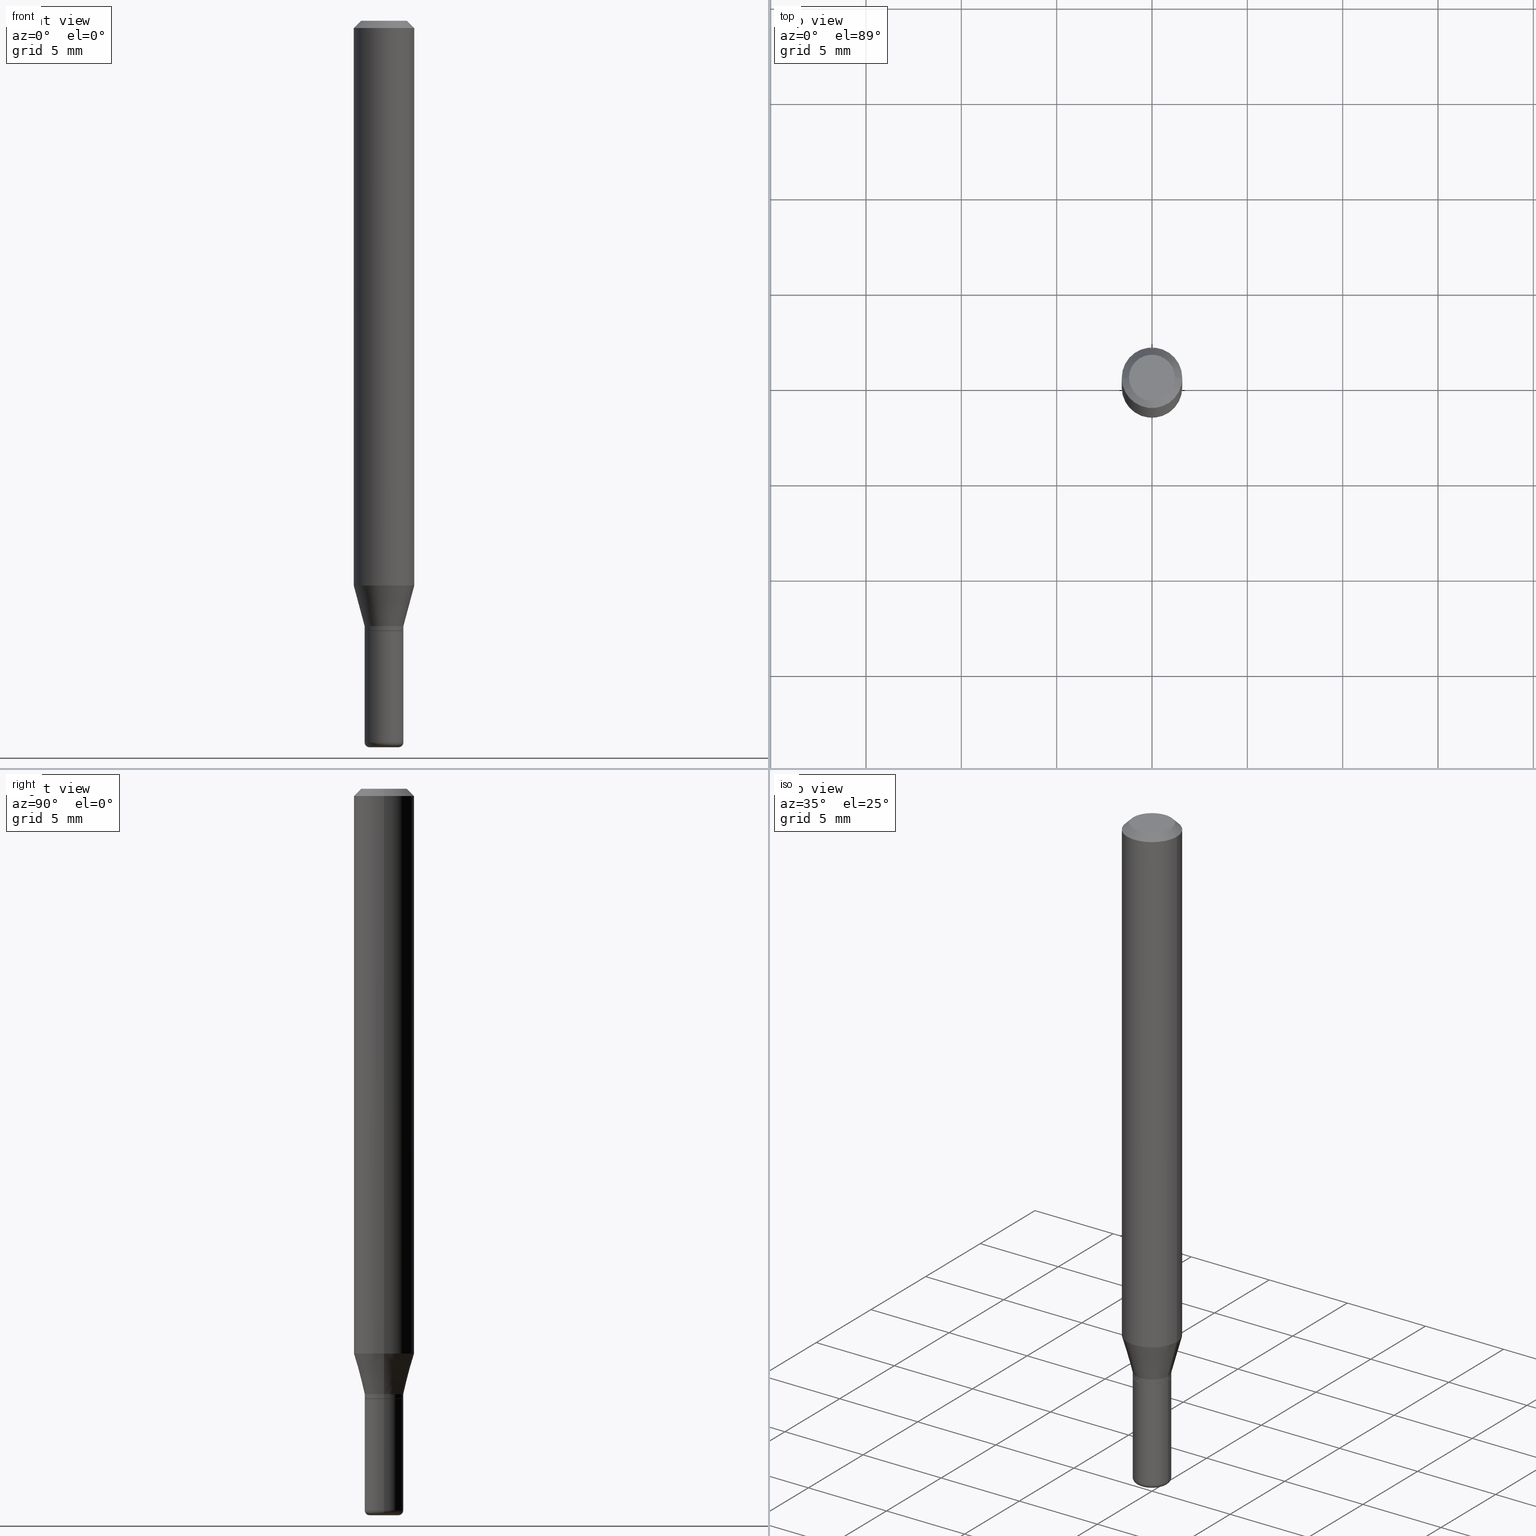
[diagram: canonical four-view strip — front | top / right | iso, engineering-drawing reading convention]
A machine part, canonical four-view strip (front | top / right | iso — engineering-drawing reading convention). The complete STEP part file that produces these views, byte-faithful:
ISO-10303-21;
HEADER;
FILE_DESCRIPTION (( 'STEP AP203' ),
    '1' );
FILE_NAME ('08703.STEP',
    '2024-02-29T20:28:42',
    ( '' ),
    ( '' ),
    'SwSTEP 2.0',
    'SolidWorks 2023',
    '' );
FILE_SCHEMA (( 'CONFIG_CONTROL_DESIGN' ));
ENDSEC;

DATA;
#1 = FACE_OUTER_BOUND ( 'NONE', #333, .T. ) ;
#2 = CIRCLE ( 'NONE', #488, 0.03999999999999995226 ) ;
#3 = EDGE_CURVE ( 'NONE', #301, #311, #379, .T. ) ;
#4 = VECTOR ( 'NONE', #401, 39.37007874015748143 ) ;
#5 = DIRECTION ( 'NONE',  ( 1.000000000000000000, -6.982962677686265922E-15, 4.876176775795935793E-29 ) ) ;
#6 = ORIENTED_EDGE ( 'NONE', *, *, #288, .T. ) ;
#7 = EDGE_CURVE ( 'NONE', #68, #344, #48, .T. ) ;
#8 = VECTOR ( 'NONE', #188, 39.37007874015748143 ) ;
#9 = DIRECTION ( 'NONE',  ( 2.445468806185136597E-29, -3.491481338843145583E-15, -1.000000000000000000 ) ) ;
#10 = CIRCLE ( 'NONE', #234, 0.03999999999999995920 ) ;
#11 = ADVANCED_BREP_SHAPE_REPRESENTATION ( '08703', ( #357, #173, #45 ), #308 ) ;
#12 = CARTESIAN_POINT ( 'NONE',  ( 3.643748521215853910E-29, -5.202307194876288105E-15, -1.490000000000000213 ) ) ;
#13 = EDGE_LOOP ( 'NONE', ( #101, #462, #169, #513 ) ) ;
#14 = DIRECTION ( 'NONE',  ( -2.445468806185136597E-29, 3.491481338843145583E-15, 1.000000000000000000 ) ) ;
#15 = FACE_OUTER_BOUND ( 'NONE', #506, .T. ) ;
#16 = ORIENTED_EDGE ( 'NONE', *, *, #380, .T. ) ;
#17 = FACE_OUTER_BOUND ( 'NONE', #18, .T. ) ;
#18 = EDGE_LOOP ( 'NONE', ( #466, #418, #216, #176 ) ) ;
#19 = VECTOR ( 'NONE', #407, 39.37007874015748143 ) ;
#20 = ORIENTED_EDGE ( 'NONE', *, *, #192, .T. ) ;
#21 = DIRECTION ( 'NONE',  ( -0.2588190451025205174, 5.211531920934544731E-15, 0.9659258262890684232 ) ) ;
#22 = ORIENTED_EDGE ( 'NONE', *, *, #7, .T. ) ;
#23 = SECURITY_CLASSIFICATION ( '', '', #166 ) ;
#24 = ORIENTED_EDGE ( 'NONE', *, *, #482, .F. ) ;
#25 = AXIS2_PLACEMENT_3D ( 'NONE', #194, #516, #155 ) ;
#26 = MECHANICAL_CONTEXT ( 'NONE', #276, 'mechanical' ) ;
#27 = ORIENTED_EDGE ( 'NONE', *, *, #406, .F. ) ;
#28 = ORIENTED_EDGE ( 'NONE', *, *, #439, .T. ) ;
#29 = DIRECTION ( 'NONE',  ( -1.000000000000000000, 7.105427357600962416E-15, 0.000000000000000000 ) ) ;
#30 = EDGE_CURVE ( 'NONE', #218, #227, #322, .T. ) ;
#31 = ORIENTED_EDGE ( 'NONE', *, *, #470, .T. ) ;
#32 = DIRECTION ( 'NONE',  ( -6.982962677686266711E-15, -1.000000000000000000, 3.491481338843145583E-15 ) ) ;
#33 = DIRECTION ( 'NONE',  ( -2.438088387897960049E-29, 3.491481338843145188E-15, 1.000000000000000000 ) ) ;
#34 = ORIENTED_EDGE ( 'NONE', *, *, #163, .F. ) ;
#35 = COORDINATED_UNIVERSAL_TIME_OFFSET ( 5, 0, .BEHIND. ) ;
#36 = CARTESIAN_POINT ( 'NONE',  ( 0.02999999999999999889, -5.411796075206875633E-15, -1.490000000000000213 ) ) ;
#37 = ORIENTED_EDGE ( 'NONE', *, *, #327, .F. ) ;
#38 = CIRCLE ( 'NONE', #267, 0.06250000000000000000 ) ;
#39 = CARTESIAN_POINT ( 'NONE',  ( 0.06250000000000000000, -4.507603161528896392E-15, -1.166028856829700144 ) ) ;
#40 = CARTESIAN_POINT ( 'NONE',  ( -6.680649051745406845E-45, 9.538196290434862081E-31, 2.731847993664263218E-16 ) ) ;
#41 = PERSON_AND_ORGANIZATION ( #485, #105 ) ;
#42 = PLANE ( 'NONE',  #370 ) ;
#43 = DIRECTION ( 'NONE',  ( 1.000000000000000000, -6.982962677686272233E-15, 0.000000000000000000 ) ) ;
#44 = CIRCLE ( 'NONE', #508, 0.04000000000000000083 ) ;
#45 = AXIS2_PLACEMENT_3D ( 'NONE', #298, #341, #183 ) ;
#46 = ORIENTED_EDGE ( 'NONE', *, *, #340, .T. ) ;
#47 = FACE_OUTER_BOUND ( 'NONE', #452, .T. ) ;
#48 = CIRCLE ( 'NONE', #243, 0.06250000000000000000 ) ;
#49 = CARTESIAN_POINT ( 'NONE',  ( 3.056836007731421306E-29, -4.364351673553932471E-15, -1.250000000000000000 ) ) ;
#50 = DATE_AND_TIME ( #119, #296 ) ;
#51 =( CONVERSION_BASED_UNIT ( 'INCH', #53 ) LENGTH_UNIT ( ) NAMED_UNIT ( #335 ) );
#52 = EDGE_CURVE ( 'NONE', #432, #361, #250, .T. ) ;
#53 = LENGTH_MEASURE_WITH_UNIT ( LENGTH_MEASURE( 0.02539999999999999897 ), #447 );
#54 = PERSON_AND_ORGANIZATION ( #485, #105 ) ;
#55 = CARTESIAN_POINT ( 'NONE',  ( 3.668203209277632395E-31, -5.237222008264614861E-17, -0.01499999999999970281 ) ) ;
#56 = DATE_AND_TIME ( #435, #367 ) ;
#57 = PERSON_AND_ORGANIZATION_ROLE ( 'creator' ) ;
#58 = PRODUCT ( '08703', '08703', '', ( #26 ) ) ;
#59 = DIRECTION ( 'NONE',  ( 2.438088387897960049E-29, -3.491481338843145188E-15, -1.000000000000000000 ) ) ;
#60 = DIRECTION ( 'NONE',  ( 1.000000000000000000, -6.982962677686276177E-15, 0.000000000000000000 ) ) ;
#61 = EDGE_CURVE ( 'NONE', #361, #432, #10, .T. ) ;
#62 = VECTOR ( 'NONE', #468, 39.37007874015748143 ) ;
#63 = CARTESIAN_POINT ( 'NONE',  ( 0.03949999999999997263, -4.675093512710971939E-15, -1.260000000000000231 ) ) ;
#64 = ADVANCED_FACE ( 'NONE', ( #385 ), #428, .F. ) ;
#65 = APPROVAL_PERSON_ORGANIZATION ( #318, #70, #352 ) ;
#66 = DIRECTION ( 'NONE',  ( 1.000000000000000000, -6.982962677686266711E-15, 0.000000000000000000 ) ) ;
#67 = ORIENTED_EDGE ( 'NONE', *, *, #441, .F. ) ;
#68 = VERTEX_POINT ( 'NONE', #512 ) ;
#69 = ADVANCED_FACE ( 'NONE', ( #113 ), #474, .T. ) ;
#70 = APPROVAL ( #205, 'UNSPECIFIED' ) ;
#71 = AXIS2_PLACEMENT_3D ( 'NONE', #498, #505, #461 ) ;
#72 = CARTESIAN_POINT ( 'NONE',  ( -0.04000000000000000083, -4.516569746605286181E-15, -1.260000000000000231 ) ) ;
#73 = ORIENTED_EDGE ( 'NONE', *, *, #92, .F. ) ;
#74 = ADVANCED_FACE ( 'NONE', ( #85 ), #313, .T. ) ;
#75 = AXIS2_PLACEMENT_3D ( 'NONE', #431, #150, #158 ) ;
#76 = EDGE_LOOP ( 'NONE', ( #137, #217 ) ) ;
#77 = DIRECTION ( 'NONE',  ( 1.000000000000000000, -6.982962677686276177E-15, 0.000000000000000000 ) ) ;
#78 = DIRECTION ( 'NONE',  ( -2.445468806185136597E-29, 3.491481338843145583E-15, 1.000000000000000000 ) ) ;
#79 = ORIENTED_EDGE ( 'NONE', *, *, #61, .F. ) ;
#80 = CC_DESIGN_APPROVAL ( #141, ( #355 ) ) ;
#81 = CARTESIAN_POINT ( 'NONE',  ( -0.03999999999999997308, 2.842170943040398830E-16, -1.967574036101961108E-30 ) ) ;
#82 = ORIENTED_EDGE ( 'NONE', *, *, #288, .F. ) ;
#83 = AXIS2_PLACEMENT_3D ( 'NONE', #453, #381, #29 ) ;
#84 = DIRECTION ( 'NONE',  ( -2.445468806185136877E-29, 3.491481338843145188E-15, 1.000000000000000000 ) ) ;
#85 = FACE_OUTER_BOUND ( 'NONE', #13, .T. ) ;
#86 = DIRECTION ( 'NONE',  ( 1.000000000000000000, -6.982962677686268288E-15, 4.876176775795935793E-29 ) ) ;
#87 = DIRECTION ( 'NONE',  ( -2.445468806185136597E-29, 3.491481338843145583E-15, 1.000000000000000000 ) ) ;
#88 = DIRECTION ( 'NONE',  ( 1.000000000000000000, -6.982962677686268288E-15, 0.000000000000000000 ) ) ;
#89 = CLOSED_SHELL ( 'NONE', ( #346, #463, #144, #69, #168, #202, #74, #392, #104, #228, #282, #373 ) ) ;
#90 = DIRECTION ( 'NONE',  ( -0.7071067811864267805, 7.493145998869918709E-15, 0.7071067811866682540 ) ) ;
#91 = CARTESIAN_POINT ( 'NONE',  ( 3.081290695793272291E-29, -4.399266486942364120E-15, -1.260000000000000231 ) ) ;
#92 = EDGE_CURVE ( 'NONE', #413, #317, #332, .T. ) ;
#93 = LOCAL_TIME ( 15, 28, 42.00000000000000000, #337 ) ;
#94 = LINE ( 'NONE', #409, #19 ) ;
#95 = CLOSED_SHELL ( 'NONE', ( #451, #153, #162, #303, #400, #64 ) ) ;
#96 = ORIENTED_EDGE ( 'NONE', *, *, #430, .F. ) ;
#97 = DIRECTION ( 'NONE',  ( -2.445468806185136597E-29, 3.491481338843145583E-15, 1.000000000000000000 ) ) ;
#98 = CARTESIAN_POINT ( 'NONE',  ( -0.06250000000000000000, -3.627078784323441317E-15, -1.166028856829700144 ) ) ;
#99 = VERTEX_POINT ( 'NONE', #443 ) ;
#100 = FACE_OUTER_BOUND ( 'NONE', #330, .T. ) ;
#101 = ORIENTED_EDGE ( 'NONE', *, *, #415, .F. ) ;
#102 = EDGE_CURVE ( 'NONE', #382, #344, #157, .T. ) ;
#103 = CC_DESIGN_PERSON_AND_ORGANIZATION_ASSIGNMENT ( #41, #57, ( #146 ) ) ;
#104 = ADVANCED_FACE ( 'NONE', ( #423 ), #42, .F. ) ;
#105 = ORGANIZATION ( 'UNSPECIFIED', 'UNSPECIFIED', '' ) ;
#106 = EDGE_LOOP ( 'NONE', ( #31, #492 ) ) ;
#107 = PERSON_AND_ORGANIZATION ( #485, #105 ) ;
#108 = CARTESIAN_POINT ( 'NONE',  ( -0.03999999999999996614, 2.842170943040398337E-16, -1.967574036101960757E-30 ) ) ;
#109 = AXIS2_PLACEMENT_3D ( 'NONE', #159, #196, #88 ) ;
#110 = ORIENTED_EDGE ( 'NONE', *, *, #52, .T. ) ;
#111 = DIRECTION ( 'NONE',  ( -2.445468806185136597E-29, 3.491481338843145583E-15, 1.000000000000000000 ) ) ;
#112 = LINE ( 'NONE', #81, #501 ) ;
#113 = FACE_OUTER_BOUND ( 'NONE', #230, .T. ) ;
#114 = CARTESIAN_POINT ( 'NONE',  ( 0.000000000000000000, 0.000000000000000000, 0.000000000000000000 ) ) ;
#115 = CONICAL_SURFACE ( 'NONE', #464, 0.06250000000000000000, 0.7853981633974488341 ) ;
#116 = LINE ( 'NONE', #515, #62 ) ;
#117 = DIRECTION ( 'NONE',  ( -2.445468806185136597E-29, 3.491481338843145583E-15, 1.000000000000000000 ) ) ;
#118 = CARTESIAN_POINT ( 'NONE',  ( 2.851487196488746564E-29, -4.071167994173503933E-15, -1.166028856829700144 ) ) ;
#119 = CALENDAR_DATE ( 2024, 29, 2 ) ;
#120 = CARTESIAN_POINT ( 'NONE',  ( 3.081290695793272291E-29, -4.399266486942364120E-15, -1.260000000000000231 ) ) ;
#121 = EDGE_CURVE ( 'NONE', #432, #145, #209, .T. ) ;
#122 =( NAMED_UNIT ( * ) SI_UNIT ( $, .STERADIAN. ) SOLID_ANGLE_UNIT ( ) );
#123 = COORDINATED_UNIVERSAL_TIME_OFFSET ( 5, 0, .BEHIND. ) ;
#124 = LINE ( 'NONE', #493, #4 ) ;
#125 = CC_DESIGN_PERSON_AND_ORGANIZATION_ASSIGNMENT ( #284, #402, ( #146 ) ) ;
#126 = DIRECTION ( 'NONE',  ( 1.000000000000000000, -6.982962677686266711E-15, 4.852736867747365086E-29 ) ) ;
#127 = CARTESIAN_POINT ( 'NONE',  ( 3.081290695793272291E-29, -4.399266486942364120E-15, -1.260000000000000231 ) ) ;
#128 = ORIENTED_EDGE ( 'NONE', *, *, #304, .F. ) ;
#129 = DIRECTION ( 'NONE',  ( 1.000000000000000000, -6.982962677686269077E-15, 4.883557194083114022E-29 ) ) ;
#130 = ORIENTED_EDGE ( 'NONE', *, *, #181, .F. ) ;
#131 = DIRECTION ( 'NONE',  ( -2.445468806185136597E-29, 3.491481338843145583E-15, 1.000000000000000000 ) ) ;
#132 = UNCERTAINTY_MEASURE_WITH_UNIT (LENGTH_MEASURE( 1.000000000000000082E-05 ), #51, 'distance_accuracy_value', 'NONE');
#133 = LINE ( 'NONE', #108, #203 ) ;
#134 = ORIENTED_EDGE ( 'NONE', *, *, #171, .F. ) ;
#135 = EDGE_LOOP ( 'NONE', ( #82, #96 ) ) ;
#136 = CIRCLE ( 'NONE', #208, 0.04000000000000000083 ) ;
#137 = ORIENTED_EDGE ( 'NONE', *, *, #198, .F. ) ;
#138 = APPLICATION_PROTOCOL_DEFINITION ( 'international standard', 'config_control_design', 1994, #300 ) ;
#139 = AXIS2_PLACEMENT_3D ( 'NONE', #55, #211, #294 ) ;
#140 = DIRECTION ( 'NONE',  ( -2.445468806185136597E-29, 3.491481338843145583E-15, 1.000000000000000000 ) ) ;
#141 = APPROVAL ( #467, 'UNSPECIFIED' ) ;
#142 = ORIENTED_EDGE ( 'NONE', *, *, #102, .F. ) ;
#143 = AXIS2_PLACEMENT_3D ( 'NONE', #114, #307, #226 ) ;
#144 = ADVANCED_FACE ( 'NONE', ( #100 ), #115, .T. ) ;
#145 = VERTEX_POINT ( 'NONE', #98 ) ;
#146 = PRODUCT_DEFINITION_FORMATION_WITH_SPECIFIED_SOURCE ( 'ANY', '', #58, .NOT_KNOWN. ) ;
#147 = CARTESIAN_POINT ( 'NONE',  ( 3.668203209277704895E-29, -5.237222008264718177E-15, -1.500000000000000222 ) ) ;
#148 = ORIENTED_EDGE ( 'NONE', *, *, #514, .F. ) ;
#149 = PERSON_AND_ORGANIZATION ( #485, #105 ) ;
#150 = DIRECTION ( 'NONE',  ( -2.445468806185136597E-29, 3.491481338843145583E-15, 1.000000000000000000 ) ) ;
#151 = ORIENTED_EDGE ( 'NONE', *, *, #324, .F. ) ;
#152 = CIRCLE ( 'NONE', #291, 0.009999999999999948166 ) ;
#153 = ADVANCED_FACE ( 'NONE', ( #247 ), #289, .T. ) ;
#154 = LINE ( 'NONE', #517, #433 ) ;
#155 = DIRECTION ( 'NONE',  ( 1.000000000000000000, -6.982962677686266711E-15, 4.876176775795935793E-29 ) ) ;
#156 = APPROVAL_PERSON_ORGANIZATION ( #359, #476, #396 ) ;
#157 = LINE ( 'NONE', #478, #398 ) ;
#158 = DIRECTION ( 'NONE',  ( 1.000000000000000000, -6.982962677686276177E-15, 0.000000000000000000 ) ) ;
#159 = CARTESIAN_POINT ( 'NONE',  ( 3.643748521215853910E-29, -5.202307194876288105E-15, -1.490000000000000213 ) ) ;
#160 = DIRECTION ( 'NONE',  ( 1.000000000000000000, -6.982962677686259611E-15, 0.000000000000000000 ) ) ;
#161 = CONICAL_SURFACE ( 'NONE', #448, 0.06250000000000000000, 0.7853981633974488341 ) ;
#162 = ADVANCED_FACE ( 'NONE', ( #15 ), #494, .F. ) ;
#163 = EDGE_CURVE ( 'NONE', #227, #218, #2, .T. ) ;
#164 = FACE_OUTER_BOUND ( 'NONE', #135, .T. ) ;
#165 = LINE ( 'NONE', #442, #245 ) ;
#166 = SECURITY_CLASSIFICATION_LEVEL ( 'unclassified' ) ;
#167 = VECTOR ( 'NONE', #21, 39.37007874015748143 ) ;
#168 = ADVANCED_FACE ( 'NONE', ( #329 ), #292, .T. ) ;
#169 = ORIENTED_EDGE ( 'NONE', *, *, #102, .T. ) ;
#170 =( NAMED_UNIT ( * ) PLANE_ANGLE_UNIT ( ) SI_UNIT ( $, .RADIAN. ) );
#171 = EDGE_CURVE ( 'NONE', #311, #301, #416, .T. ) ;
#172 = DIRECTION ( 'NONE',  ( 2.445468806185136597E-29, -3.491481338843145583E-15, -1.000000000000000000 ) ) ;
#173 = MANIFOLD_SOLID_BREP ( 'Body-Move/Copy2[2]', #89 ) ;
#174 = LINE ( 'NONE', #491, #223 ) ;
#175 = CC_DESIGN_SECURITY_CLASSIFICATION ( #23, ( #146 ) ) ;
#176 = ORIENTED_EDGE ( 'NONE', *, *, #30, .F. ) ;
#177 = DIRECTION ( 'NONE',  ( -1.000000000000000000, 6.982962677686266711E-15, 0.000000000000000000 ) ) ;
#178 = AXIS2_PLACEMENT_3D ( 'NONE', #127, #97, #495 ) ;
#179 = ORIENTED_EDGE ( 'NONE', *, *, #514, .T. ) ;
#180 = DIRECTION ( 'NONE',  ( -1.000000000000000000, 6.982962677686266711E-15, 0.000000000000000000 ) ) ;
#181 = EDGE_CURVE ( 'NONE', #301, #432, #133, .T. ) ;
#182 = EDGE_LOOP ( 'NONE', ( #6, #222, #134, #378 ) ) ;
#183 = DIRECTION ( 'NONE',  ( 1.000000000000000000, 0.000000000000000000, 0.000000000000000000 ) ) ;
#184 = AXIS2_PLACEMENT_3D ( 'NONE', #275, #348, #201 ) ;
#185 = TOROIDAL_SURFACE ( 'NONE', #399, 0.02999999999999999889, 0.009999999999999946432 ) ;
#186 = VERTEX_POINT ( 'NONE', #72 ) ;
#187 = DIRECTION ( 'NONE',  ( -2.445468806185136597E-29, 3.491481338843145583E-15, 1.000000000000000000 ) ) ;
#188 = DIRECTION ( 'NONE',  ( -0.7071067811865479058, 2.468850131082261005E-15, -0.7071067811865471286 ) ) ;
#189 = DIRECTION ( 'NONE',  ( 1.000000000000000000, -6.982962677686265922E-15, 4.876176775795935793E-29 ) ) ;
#190 = AXIS2_PLACEMENT_3D ( 'NONE', #233, #242, #397 ) ;
#191 = CALENDAR_DATE ( 2024, 29, 2 ) ;
#192 = EDGE_CURVE ( 'NONE', #221, #218, #299, .T. ) ;
#193 = CARTESIAN_POINT ( 'NONE',  ( -0.03000000000000000583, -4.971074644054468644E-15, -1.500000000000000222 ) ) ;
#194 = CARTESIAN_POINT ( 'NONE',  ( 0.000000000000000000, 0.000000000000000000, 0.000000000000000000 ) ) ;
#195 = CARTESIAN_POINT ( 'NONE',  ( 0.03000000000000000583, -5.446710888595306494E-15, -1.500000000000000222 ) ) ;
#196 = DIRECTION ( 'NONE',  ( -2.445468806185136597E-29, 3.491481338843145583E-15, 1.000000000000000000 ) ) ;
#197 = CARTESIAN_POINT ( 'NONE',  ( 3.316907271900976589E-16, 0.04750000000000000749, -2.925296391183627249E-17 ) ) ;
#198 = EDGE_CURVE ( 'NONE', #388, #221, #360, .T. ) ;
#199 = APPROVAL_PERSON_ORGANIZATION ( #149, #141, #231 ) ;
#200 = CYLINDRICAL_SURFACE ( 'NONE', #249, 0.03999999999999996614 ) ;
#201 = DIRECTION ( 'NONE',  ( 1.000000000000000000, -6.982962677686264344E-15, 0.000000000000000000 ) ) ;
#202 = ADVANCED_FACE ( 'NONE', ( #258 ), #427, .T. ) ;
#203 = VECTOR ( 'NONE', #417, 39.37007874015748143 ) ;
#204 = CARTESIAN_POINT ( 'NONE',  ( 0.06250000000000000000, -4.888073874380378612E-16, -0.01499999999999970281 ) ) ;
#205 = APPROVAL_STATUS ( 'not_yet_approved' ) ;
#206 = DIRECTION ( 'NONE',  ( -2.445468806185136597E-29, 3.491481338843145583E-15, 1.000000000000000000 ) ) ;
#207 = LINE ( 'NONE', #403, #354 ) ;
#208 = AXIS2_PLACEMENT_3D ( 'NONE', #319, #345, #483 ) ;
#209 = LINE ( 'NONE', #499, #167 ) ;
#210 = ORIENTED_EDGE ( 'NONE', *, *, #3, .F. ) ;
#211 = DIRECTION ( 'NONE',  ( -2.445468806185136597E-29, 3.491481338843145583E-15, 1.000000000000000000 ) ) ;
#212 = DIRECTION ( 'NONE',  ( -2.445468806185136597E-29, 3.491481338843145583E-15, 1.000000000000000000 ) ) ;
#213 = EDGE_LOOP ( 'NONE', ( #510, #20, #34, #309 ) ) ;
#214 = FACE_OUTER_BOUND ( 'NONE', #213, .T. ) ;
#215 = CC_DESIGN_PERSON_AND_ORGANIZATION_ASSIGNMENT ( #338, #455, ( #355 ) ) ;
#216 = ORIENTED_EDGE ( 'NONE', *, *, #321, .T. ) ;
#217 = ORIENTED_EDGE ( 'NONE', *, *, #471, .F. ) ;
#218 = VERTEX_POINT ( 'NONE', #420 ) ;
#219 = CC_DESIGN_APPROVAL ( #70, ( #146 ) ) ;
#220 = AXIS2_PLACEMENT_3D ( 'NONE', #295, #259, #436 ) ;
#221 = VERTEX_POINT ( 'NONE', #193 ) ;
#222 = ORIENTED_EDGE ( 'NONE', *, *, #441, .T. ) ;
#223 = VECTOR ( 'NONE', #325, 39.37007874015748143 ) ;
#224 = CIRCLE ( 'NONE', #489, 0.03000000000000000583 ) ;
#225 = ORIENTED_EDGE ( 'NONE', *, *, #340, .F. ) ;
#226 = DIRECTION ( 'NONE',  ( 1.000000000000000000, -6.982962677686266711E-15, 4.876176775795935793E-29 ) ) ;
#227 = VERTEX_POINT ( 'NONE', #473 ) ;
#228 = ADVANCED_FACE ( 'NONE', ( #164 ), #239, .F. ) ;
#229 = APPROVAL_DATE_TIME ( #279, #70 ) ;
#230 = EDGE_LOOP ( 'NONE', ( #16, #372, #148, #142 ) ) ;
#231 = APPROVAL_ROLE ( '' ) ;
#232 = DIRECTION ( 'NONE',  ( 1.000000000000000000, -6.982962677686268288E-15, 4.876176775795935793E-29 ) ) ;
#233 = CARTESIAN_POINT ( 'NONE',  ( 3.056836007731421306E-29, -4.364351673553932471E-15, -1.250000000000000000 ) ) ;
#234 = AXIS2_PLACEMENT_3D ( 'NONE', #49, #78, #421 ) ;
#235 = DIRECTION ( 'NONE',  ( -2.445468806185136597E-29, 3.491481338843145583E-15, 1.000000000000000000 ) ) ;
#236 = CARTESIAN_POINT ( 'NONE',  ( 0.000000000000000000, 0.000000000000000000, 0.000000000000000000 ) ) ;
#237 = CC_DESIGN_PERSON_AND_ORGANIZATION_ASSIGNMENT ( #107, #457, ( #58 ) ) ;
#238 = CALENDAR_DATE ( 2024, 29, 2 ) ;
#239 = PLANE ( 'NONE',  #404 ) ;
#240 = CARTESIAN_POINT ( 'NONE',  ( 0.03999999999999995920, -4.643670180661383298E-15, -1.250000000000000000 ) ) ;
#241 = APPROVAL_STATUS ( 'not_yet_approved' ) ;
#242 = DIRECTION ( 'NONE',  ( -2.445468806185136597E-29, 3.491481338843145583E-15, 1.000000000000000000 ) ) ;
#243 = AXIS2_PLACEMENT_3D ( 'NONE', #484, #278, #270 ) ;
#244 = DIRECTION ( 'NONE',  ( 1.000000000000000000, -6.982962677686266711E-15, 0.000000000000000000 ) ) ;
#245 = VECTOR ( 'NONE', #90, 39.37007874015748143 ) ;
#246 = DIRECTION ( 'NONE',  ( -2.445468806185136597E-29, 3.491481338843145583E-15, 1.000000000000000000 ) ) ;
#247 = FACE_OUTER_BOUND ( 'NONE', #375, .T. ) ;
#248 = CARTESIAN_POINT ( 'NONE',  ( 3.668203209277704895E-29, -5.237222008264718177E-15, -1.500000000000000222 ) ) ;
#249 = AXIS2_PLACEMENT_3D ( 'NONE', #475, #480, #86 ) ;
#250 = CIRCLE ( 'NONE', #190, 0.03999999999999995920 ) ;
#251 = DIRECTION ( 'NONE',  ( 1.000000000000000000, -6.982962677686269077E-15, 4.883557194083114022E-29 ) ) ;
#252 = VERTEX_POINT ( 'NONE', #273 ) ;
#253 = EDGE_CURVE ( 'NONE', #186, #99, #136, .T. ) ;
#254 = CARTESIAN_POINT ( 'NONE',  ( 0.04750000000000000749, -4.035134999187568762E-16, 2.731847993664288856E-16 ) ) ;
#255 = CARTESIAN_POINT ( 'NONE',  ( 3.668203209277632395E-31, -5.237222008264614861E-17, -0.01499999999999970281 ) ) ;
#256 = ORIENTED_EDGE ( 'NONE', *, *, #121, .T. ) ;
#257 = CIRCLE ( 'NONE', #139, 0.06250000000000000000 ) ;
#258 = FACE_OUTER_BOUND ( 'NONE', #481, .T. ) ;
#259 = DIRECTION ( 'NONE',  ( 2.438088387897960049E-29, -3.491481338843145188E-15, -1.000000000000000000 ) ) ;
#260 = EDGE_CURVE ( 'NONE', #218, #186, #112, .T. ) ;
#261 = LOCAL_TIME ( 15, 28, 42.00000000000000000, #274 ) ;
#262 = EDGE_LOOP ( 'NONE', ( #419, #371, #79, #24 ) ) ;
#263 = DIRECTION ( 'NONE',  ( 1.000000000000000000, -6.982962677686268288E-15, 0.000000000000000000 ) ) ;
#264 = AXIS2_PLACEMENT_3D ( 'NONE', #465, #111, #269 ) ;
#265 = ORIENTED_EDGE ( 'NONE', *, *, #406, .T. ) ;
#266 = CC_DESIGN_DATE_AND_TIME_ASSIGNMENT ( #50, #314, ( #355 ) ) ;
#267 = AXIS2_PLACEMENT_3D ( 'NONE', #386, #347, #390 ) ;
#268 = APPLICATION_PROTOCOL_DEFINITION ( 'international standard', 'config_control_design', 1994, #276 ) ;
#269 = DIRECTION ( 'NONE',  ( 1.000000000000000000, -6.982962677686279332E-15, 0.000000000000000000 ) ) ;
#270 = DIRECTION ( 'NONE',  ( 1.000000000000000000, -6.982962677686266711E-15, 0.000000000000000000 ) ) ;
#271 = CARTESIAN_POINT ( 'NONE',  ( -0.04750000000000000749, 3.578768372314221353E-16, 2.731847993664239060E-16 ) ) ;
#272 = EDGE_LOOP ( 'NONE', ( #67, #469, #28, #210 ) ) ;
#273 = CARTESIAN_POINT ( 'NONE',  ( -0.03949999999999997263, -4.115952879143013491E-15, -1.260000000000000231 ) ) ;
#274 = COORDINATED_UNIVERSAL_TIME_OFFSET ( 5, 0, .BEHIND. ) ;
#275 = CARTESIAN_POINT ( 'NONE',  ( 3.080067961390179490E-29, -4.397520746272941828E-15, -1.259500000000000064 ) ) ;
#276 = APPLICATION_CONTEXT ( 'configuration controlled 3d designs of mechanical parts and assemblies' ) ;
#277 = CARTESIAN_POINT ( 'NONE',  ( -0.06250000000000000000, 3.840629472727455270E-16, -0.01499999999999970281 ) ) ;
#278 = DIRECTION ( 'NONE',  ( -2.445468806185136597E-29, 3.491481338843145583E-15, 1.000000000000000000 ) ) ;
#279 = DATE_AND_TIME ( #238, #93 ) ;
#280 = LINE ( 'NONE', #277, #8 ) ;
#281 = DIRECTION ( 'NONE',  ( -2.445468806185136877E-29, 3.491481338843145188E-15, 1.000000000000000000 ) ) ;
#282 = ADVANCED_FACE ( 'NONE', ( #393 ), #316, .T. ) ;
#283 = APPROVAL_DATE_TIME ( #56, #476 ) ;
#284 = PERSON_AND_ORGANIZATION ( #485, #105 ) ;
#285 = AXIS2_PLACEMENT_3D ( 'NONE', #408, #212, #440 ) ;
#286 = DIRECTION ( 'NONE',  ( -2.445468806185136877E-29, 3.491481338843145188E-15, 1.000000000000000000 ) ) ;
#287 = CONICAL_SURFACE ( 'NONE', #496, 0.03949999999999997263, 0.7853981633972775267 ) ;
#288 = EDGE_CURVE ( 'NONE', #410, #252, #503, .T. ) ;
#289 = CYLINDRICAL_SURFACE ( 'NONE', #285, 0.03999999999999997308 ) ;
#290 = CARTESIAN_POINT ( 'NONE',  ( -0.03999999999999995920, -3.853606681786666336E-15, -1.250000000000000000 ) ) ;
#291 = AXIS2_PLACEMENT_3D ( 'NONE', #36, #32, #43 ) ;
#292 = CONICAL_SURFACE ( 'NONE', #71, 0.03999999999999995920, 0.2617993877991491858 ) ;
#293 = EDGE_LOOP ( 'NONE', ( #27, #502, #323, #22 ) ) ;
#294 = DIRECTION ( 'NONE',  ( 1.000000000000000000, -6.982962677686266711E-15, 0.000000000000000000 ) ) ;
#295 = CARTESIAN_POINT ( 'NONE',  ( 2.793185071074814439E-16, 0.03999999999999560157, -1.260000000000000453 ) ) ;
#296 = LOCAL_TIME ( 15, 28, 42.00000000000000000, #507 ) ;
#297 = APPROVAL_DATE_TIME ( #500, #141 ) ;
#298 = CARTESIAN_POINT ( 'NONE',  ( 0.000000000000000000, 0.000000000000000000, 0.000000000000000000 ) ) ;
#299 = CIRCLE ( 'NONE', #83, 0.009999999999999948166 ) ;
#300 = APPLICATION_CONTEXT ( 'configuration controlled 3d designs of mechanical parts and assemblies' ) ;
#301 = VERTEX_POINT ( 'NONE', #312 ) ;
#302 = LOCAL_TIME ( 15, 28, 42.00000000000000000, #35 ) ;
#303 = ADVANCED_FACE ( 'NONE', ( #1 ), #429, .T. ) ;
#304 = EDGE_CURVE ( 'NONE', #361, #382, #116, .T. ) ;
#305 = DIRECTION ( 'NONE',  ( 1.000000000000000000, -6.982962677686264344E-15, 0.000000000000000000 ) ) ;
#306 = TOROIDAL_SURFACE ( 'NONE', #389, 0.02999999999999999889, 0.009999999999999946432 ) ;
#307 = DIRECTION ( 'NONE',  ( -2.445468806185136597E-29, 3.491481338843145583E-15, 1.000000000000000000 ) ) ;
#308 =( GEOMETRIC_REPRESENTATION_CONTEXT ( 3 ) GLOBAL_UNCERTAINTY_ASSIGNED_CONTEXT ( ( #132 ) ) GLOBAL_UNIT_ASSIGNED_CONTEXT ( ( #51, #170, #122 ) ) REPRESENTATION_CONTEXT ( 'NONE', 'WORKASPACE' ) );
#309 = ORIENTED_EDGE ( 'NONE', *, *, #321, .F. ) ;
#310 = DIRECTION ( 'NONE',  ( -2.445468806185136597E-29, 3.491481338843145583E-15, 1.000000000000000000 ) ) ;
#311 = VERTEX_POINT ( 'NONE', #384 ) ;
#312 = CARTESIAN_POINT ( 'NONE',  ( -0.03999999999999997308, -4.113303651968902290E-15, -1.259500000000000064 ) ) ;
#313 = CYLINDRICAL_SURFACE ( 'NONE', #445, 0.06250000000000000000 ) ;
#314 = DATE_TIME_ROLE ( 'creation_date' ) ;
#315 = DIRECTION ( 'NONE',  ( -2.445468806185136597E-29, 3.491481338843145583E-15, 1.000000000000000000 ) ) ;
#316 = CONICAL_SURFACE ( 'NONE', #479, 0.03949999999999997263, 0.7853981633972775267 ) ;
#317 = VERTEX_POINT ( 'NONE', #271 ) ;
#318 = PERSON_AND_ORGANIZATION ( #485, #105 ) ;
#319 = CARTESIAN_POINT ( 'NONE',  ( 3.081290695793272291E-29, -4.399266486942364120E-15, -1.260000000000000231 ) ) ;
#320 = SHAPE_DEFINITION_REPRESENTATION ( #487, #11 ) ;
#321 = EDGE_CURVE ( 'NONE', #388, #227, #152, .T. ) ;
#322 = CIRCLE ( 'NONE', #109, 0.03999999999999995226 ) ;
#323 = ORIENTED_EDGE ( 'NONE', *, *, #324, .T. ) ;
#324 = EDGE_CURVE ( 'NONE', #317, #68, #280, .T. ) ;
#325 = DIRECTION ( 'NONE',  ( 0.7071067811865479058, -7.319954787623257623E-15, -0.7071067811865471286 ) ) ;
#326 = CIRCLE ( 'NONE', #350, 0.06250000000000000000 ) ;
#327 = EDGE_CURVE ( 'NONE', #227, #99, #154, .T. ) ;
#328 = ORIENTED_EDGE ( 'NONE', *, *, #30, .T. ) ;
#329 = FACE_OUTER_BOUND ( 'NONE', #454, .T. ) ;
#330 = EDGE_LOOP ( 'NONE', ( #73, #265, #179, #151 ) ) ;
#331 = ORIENTED_EDGE ( 'NONE', *, *, #380, .F. ) ;
#332 = CIRCLE ( 'NONE', #437, 0.04750000000000000749 ) ;
#333 = EDGE_LOOP ( 'NONE', ( #374, #328, #422, #339 ) ) ;
#334 = DIRECTION ( 'NONE',  ( -2.445468806185136597E-29, 3.491481338843145583E-15, 1.000000000000000000 ) ) ;
#335 = DIMENSIONAL_EXPONENTS ( 1.000000000000000000, 0.000000000000000000, 0.000000000000000000, 0.000000000000000000, 0.000000000000000000, 0.000000000000000000, 0.000000000000000000 ) ;
#336 = ORIENTED_EDGE ( 'NONE', *, *, #61, .T. ) ;
#337 = COORDINATED_UNIVERSAL_TIME_OFFSET ( 5, 0, .BEHIND. ) ;
#338 = PERSON_AND_ORGANIZATION ( #485, #105 ) ;
#339 = ORIENTED_EDGE ( 'NONE', *, *, #253, .F. ) ;
#340 = EDGE_CURVE ( 'NONE', #99, #186, #44, .T. ) ;
#341 = DIRECTION ( 'NONE',  ( 0.000000000000000000, 0.000000000000000000, 1.000000000000000000 ) ) ;
#342 = FACE_OUTER_BOUND ( 'NONE', #262, .T. ) ;
#343 = ORIENTED_EDGE ( 'NONE', *, *, #369, .F. ) ;
#344 = VERTEX_POINT ( 'NONE', #204 ) ;
#345 = DIRECTION ( 'NONE',  ( -2.445468806185136597E-29, 3.491481338843145583E-15, 1.000000000000000000 ) ) ;
#346 = ADVANCED_FACE ( 'NONE', ( #342 ), #200, .T. ) ;
#347 = DIRECTION ( 'NONE',  ( -2.445468806185136597E-29, 3.491481338843145583E-15, 1.000000000000000000 ) ) ;
#348 = DIRECTION ( 'NONE',  ( -2.445468806185136597E-29, 3.491481338843145583E-15, 1.000000000000000000 ) ) ;
#349 = CARTESIAN_POINT ( 'NONE',  ( 3.081290695793272291E-29, -4.399266486942364120E-15, -1.260000000000000231 ) ) ;
#350 = AXIS2_PLACEMENT_3D ( 'NONE', #118, #310, #511 ) ;
#351 = AXIS2_PLACEMENT_3D ( 'NONE', #147, #187, #66 ) ;
#352 = APPROVAL_ROLE ( '' ) ;
#353 = CARTESIAN_POINT ( 'NONE',  ( 0.000000000000000000, 0.000000000000000000, 0.000000000000000000 ) ) ;
#354 = VECTOR ( 'NONE', #286, 39.37007874015748143 ) ;
#355 = PRODUCT_DEFINITION ( 'UNKNOWN', '', #146, #383 ) ;
#356 = ORIENTED_EDGE ( 'NONE', *, *, #3, .T. ) ;
#357 = MANIFOLD_SOLID_BREP ( 'Body-Move/Copy2[1]', #95 ) ;
#358 = DIRECTION ( 'NONE',  ( 1.000000000000000000, -6.982962677686266711E-15, 4.852736867747365086E-29 ) ) ;
#359 = PERSON_AND_ORGANIZATION ( #485, #105 ) ;
#360 = CIRCLE ( 'NONE', #351, 0.03000000000000000583 ) ;
#361 = VERTEX_POINT ( 'NONE', #240 ) ;
#362 = FACE_OUTER_BOUND ( 'NONE', #182, .T. ) ;
#363 = FACE_OUTER_BOUND ( 'NONE', #293, .T. ) ;
#364 = CARTESIAN_POINT ( 'NONE',  ( 3.643748521215853910E-29, -5.202307194876288105E-15, -1.490000000000000213 ) ) ;
#365 = DIRECTION ( 'NONE',  ( -1.000000000000000000, 6.982962677686265922E-15, -4.876176775795935793E-29 ) ) ;
#366 = ORIENTED_EDGE ( 'NONE', *, *, #260, .T. ) ;
#367 = LOCAL_TIME ( 15, 28, 42.00000000000000000, #123 ) ;
#368 = DIRECTION ( 'NONE',  ( -2.445468806185136597E-29, 3.491481338843145583E-15, 1.000000000000000000 ) ) ;
#369 = EDGE_CURVE ( 'NONE', #145, #382, #326, .T. ) ;
#370 = AXIS2_PLACEMENT_3D ( 'NONE', #197, #59, #365 ) ;
#371 = ORIENTED_EDGE ( 'NONE', *, *, #181, .T. ) ;
#372 = ORIENTED_EDGE ( 'NONE', *, *, #415, .T. ) ;
#373 = ADVANCED_FACE ( 'NONE', ( #47 ), #424, .T. ) ;
#374 = ORIENTED_EDGE ( 'NONE', *, *, #260, .F. ) ;
#375 = EDGE_LOOP ( 'NONE', ( #405, #366, #225, #37 ) ) ;
#376 = CC_DESIGN_APPROVAL ( #476, ( #23 ) ) ;
#377 = PRODUCT_RELATED_PRODUCT_CATEGORY ( 'detail', '', ( #58 ) ) ;
#378 = ORIENTED_EDGE ( 'NONE', *, *, #439, .F. ) ;
#379 = CIRCLE ( 'NONE', #184, 0.03999999999999997308 ) ;
#380 = EDGE_CURVE ( 'NONE', #382, #145, #38, .T. ) ;
#381 = DIRECTION ( 'NONE',  ( 7.105427357601001859E-15, 1.000000000000000000, -3.491481338843145583E-15 ) ) ;
#382 = VERTEX_POINT ( 'NONE', #39 ) ;
#383 = DESIGN_CONTEXT ( 'detailed design', #300, 'design' ) ;
#384 = CARTESIAN_POINT ( 'NONE',  ( 0.03999999999999997308, -4.676839253380393443E-15, -1.259500000000000064 ) ) ;
#385 = FACE_OUTER_BOUND ( 'NONE', #76, .T. ) ;
#386 = CARTESIAN_POINT ( 'NONE',  ( 2.851487196488746564E-29, -4.071167994173503933E-15, -1.166028856829700144 ) ) ;
#387 = AXIS2_PLACEMENT_3D ( 'NONE', #518, #33, #189 ) ;
#388 = VERTEX_POINT ( 'NONE', #195 ) ;
#389 = AXIS2_PLACEMENT_3D ( 'NONE', #444, #246, #129 ) ;
#390 = DIRECTION ( 'NONE',  ( 1.000000000000000000, -6.982962677686262766E-15, 0.000000000000000000 ) ) ;
#391 = DIRECTION ( 'NONE',  ( -2.445468806185136597E-29, 3.491481338843145583E-15, 1.000000000000000000 ) ) ;
#392 = ADVANCED_FACE ( 'NONE', ( #363 ), #161, .T. ) ;
#393 = FACE_OUTER_BOUND ( 'NONE', #272, .T. ) ;
#394 = DIRECTION ( 'NONE',  ( -2.445468806185136877E-29, 3.491481338843145188E-15, 1.000000000000000000 ) ) ;
#395 = DIRECTION ( 'NONE',  ( -2.438088387897960049E-29, 3.491481338843145188E-15, 1.000000000000000000 ) ) ;
#396 = APPROVAL_ROLE ( '' ) ;
#397 = DIRECTION ( 'NONE',  ( 1.000000000000000000, -6.982962677686279332E-15, 0.000000000000000000 ) ) ;
#398 = VECTOR ( 'NONE', #394, 39.37007874015748143 ) ;
#399 = AXIS2_PLACEMENT_3D ( 'NONE', #12, #14, #251 ) ;
#400 = ADVANCED_FACE ( 'NONE', ( #17 ), #185, .T. ) ;
#401 = DIRECTION ( 'NONE',  ( -2.445468806185136877E-29, 3.491481338843145188E-15, 1.000000000000000000 ) ) ;
#402 = PERSON_AND_ORGANIZATION_ROLE ( 'design_supplier' ) ;
#403 = CARTESIAN_POINT ( 'NONE',  ( 0.03999999999999996614, -2.793185071074504811E-16, 1.950470710318372636E-30 ) ) ;
#404 = AXIS2_PLACEMENT_3D ( 'NONE', #349, #395, #5 ) ;
#405 = ORIENTED_EDGE ( 'NONE', *, *, #163, .T. ) ;
#406 = EDGE_CURVE ( 'NONE', #413, #344, #174, .T. ) ;
#407 = DIRECTION ( 'NONE',  ( 0.7071067811864267805, -2.468850131080992517E-15, 0.7071067811866682540 ) ) ;
#408 = CARTESIAN_POINT ( 'NONE',  ( 0.000000000000000000, 0.000000000000000000, 0.000000000000000000 ) ) ;
#409 = CARTESIAN_POINT ( 'NONE',  ( 0.03949999999999997263, -4.675093512710971939E-15, -1.260000000000000231 ) ) ;
#410 = VERTEX_POINT ( 'NONE', #63 ) ;
#411 = CARTESIAN_POINT ( 'NONE',  ( 3.080067961390179490E-29, -4.397520746272941828E-15, -1.259500000000000064 ) ) ;
#412 = CIRCLE ( 'NONE', #449, 0.04750000000000000749 ) ;
#413 = VERTEX_POINT ( 'NONE', #254 ) ;
#414 = ORIENTED_EDGE ( 'NONE', *, *, #304, .T. ) ;
#415 = EDGE_CURVE ( 'NONE', #145, #68, #124, .T. ) ;
#416 = CIRCLE ( 'NONE', #456, 0.03999999999999997308 ) ;
#417 = DIRECTION ( 'NONE',  ( -2.445468806185136877E-29, 3.491481338843145188E-15, 1.000000000000000000 ) ) ;
#418 = ORIENTED_EDGE ( 'NONE', *, *, #471, .T. ) ;
#419 = ORIENTED_EDGE ( 'NONE', *, *, #171, .T. ) ;
#420 = CARTESIAN_POINT ( 'NONE',  ( -0.03999999999999995226, -4.516569746605286181E-15, -1.490000000000000213 ) ) ;
#421 = DIRECTION ( 'NONE',  ( 1.000000000000000000, -6.982962677686279332E-15, 0.000000000000000000 ) ) ;
#422 = ORIENTED_EDGE ( 'NONE', *, *, #327, .T. ) ;
#423 = FACE_OUTER_BOUND ( 'NONE', #106, .T. ) ;
#424 = CYLINDRICAL_SURFACE ( 'NONE', #459, 0.03999999999999996614 ) ;
#425 = CARTESIAN_POINT ( 'NONE',  ( 3.081290695793272291E-29, -4.399266486942364120E-15, -1.260000000000000231 ) ) ;
#426 = DATE_AND_TIME ( #509, #261 ) ;
#427 = CONICAL_SURFACE ( 'NONE', #264, 0.03999999999999995920, 0.2617993877991491858 ) ;
#428 = PLANE ( 'NONE',  #387 ) ;
#429 = CYLINDRICAL_SURFACE ( 'NONE', #143, 0.03999999999999997308 ) ;
#430 = EDGE_CURVE ( 'NONE', #252, #410, #438, .T. ) ;
#431 = CARTESIAN_POINT ( 'NONE',  ( 3.081290695793272291E-29, -4.399266486942364120E-15, -1.260000000000000231 ) ) ;
#432 = VERTEX_POINT ( 'NONE', #290 ) ;
#433 = VECTOR ( 'NONE', #84, 39.37007874015748143 ) ;
#434 = CARTESIAN_POINT ( 'NONE',  ( -6.680649051745406845E-45, 9.538196290434862081E-31, 2.731847993664263218E-16 ) ) ;
#435 = CALENDAR_DATE ( 2024, 29, 2 ) ;
#436 = DIRECTION ( 'NONE',  ( -1.000000000000000000, 6.982962677686265922E-15, -4.876176775795935793E-29 ) ) ;
#437 = AXIS2_PLACEMENT_3D ( 'NONE', #40, #117, #126 ) ;
#438 = CIRCLE ( 'NONE', #178, 0.03949999999999997263 ) ;
#439 = EDGE_CURVE ( 'NONE', #410, #311, #94, .T. ) ;
#440 = DIRECTION ( 'NONE',  ( 1.000000000000000000, -6.982962677686266711E-15, 4.876176775795935793E-29 ) ) ;
#441 = EDGE_CURVE ( 'NONE', #252, #301, #165, .T. ) ;
#442 = CARTESIAN_POINT ( 'NONE',  ( -0.03949999999999997263, -4.118602106317125481E-15, -1.260000000000000231 ) ) ;
#443 = CARTESIAN_POINT ( 'NONE',  ( 0.04000000000000000083, -4.678584994049814947E-15, -1.260000000000000231 ) ) ;
#444 = CARTESIAN_POINT ( 'NONE',  ( 3.643748521215853910E-29, -5.202307194876288105E-15, -1.490000000000000213 ) ) ;
#445 = AXIS2_PLACEMENT_3D ( 'NONE', #236, #391, #477 ) ;
#446 = ORIENTED_EDGE ( 'NONE', *, *, #52, .F. ) ;
#447 =( LENGTH_UNIT ( ) NAMED_UNIT ( * ) SI_UNIT ( $, .METRE. ) );
#448 = AXIS2_PLACEMENT_3D ( 'NONE', #490, #9, #177 ) ;
#449 = AXIS2_PLACEMENT_3D ( 'NONE', #434, #206, #358 ) ;
#450 = CC_DESIGN_PERSON_AND_ORGANIZATION_ASSIGNMENT ( #54, #497, ( #23 ) ) ;
#451 = ADVANCED_FACE ( 'NONE', ( #214 ), #306, .T. ) ;
#452 = EDGE_LOOP ( 'NONE', ( #130, #356, #472, #446 ) ) ;
#453 = CARTESIAN_POINT ( 'NONE',  ( -0.02999999999999999889, -4.989144374148257860E-15, -1.490000000000000213 ) ) ;
#454 = EDGE_LOOP ( 'NONE', ( #336, #256, #331, #128 ) ) ;
#455 = PERSON_AND_ORGANIZATION_ROLE ( 'creator' ) ;
#456 = AXIS2_PLACEMENT_3D ( 'NONE', #411, #140, #305 ) ;
#457 = PERSON_AND_ORGANIZATION_ROLE ( 'design_owner' ) ;
#458 = CC_DESIGN_DATE_AND_TIME_ASSIGNMENT ( #426, #486, ( #23 ) ) ;
#459 = AXIS2_PLACEMENT_3D ( 'NONE', #353, #235, #232 ) ;
#460 = ORIENTED_EDGE ( 'NONE', *, *, #253, .T. ) ;
#461 = DIRECTION ( 'NONE',  ( 1.000000000000000000, -6.982962677686279332E-15, 0.000000000000000000 ) ) ;
#462 = ORIENTED_EDGE ( 'NONE', *, *, #369, .T. ) ;
#463 = ADVANCED_FACE ( 'NONE', ( #362 ), #287, .T. ) ;
#464 = AXIS2_PLACEMENT_3D ( 'NONE', #255, #172, #180 ) ;
#465 = CARTESIAN_POINT ( 'NONE',  ( 3.056836007731421306E-29, -4.364351673553932471E-15, -1.250000000000000000 ) ) ;
#466 = ORIENTED_EDGE ( 'NONE', *, *, #192, .F. ) ;
#467 = APPROVAL_STATUS ( 'not_yet_approved' ) ;
#468 = DIRECTION ( 'NONE',  ( 0.2588190451025205174, 1.565188264969628476E-15, 0.9659258262890684232 ) ) ;
#469 = ORIENTED_EDGE ( 'NONE', *, *, #430, .T. ) ;
#470 = EDGE_CURVE ( 'NONE', #317, #413, #412, .T. ) ;
#471 = EDGE_CURVE ( 'NONE', #221, #388, #224, .T. ) ;
#472 = ORIENTED_EDGE ( 'NONE', *, *, #482, .T. ) ;
#473 = CARTESIAN_POINT ( 'NONE',  ( 0.03999999999999995226, -5.481625701983738143E-15, -1.490000000000000213 ) ) ;
#474 = CYLINDRICAL_SURFACE ( 'NONE', #25, 0.06250000000000000000 ) ;
#475 = CARTESIAN_POINT ( 'NONE',  ( 0.000000000000000000, 0.000000000000000000, 0.000000000000000000 ) ) ;
#476 = APPROVAL ( #241, 'UNSPECIFIED' ) ;
#477 = DIRECTION ( 'NONE',  ( 1.000000000000000000, -6.982962677686266711E-15, 4.876176775795935793E-29 ) ) ;
#478 = CARTESIAN_POINT ( 'NONE',  ( 0.06250000000000000000, -4.364351673553916694E-16, 3.047610484872459871E-30 ) ) ;
#479 = AXIS2_PLACEMENT_3D ( 'NONE', #120, #315, #77 ) ;
#480 = DIRECTION ( 'NONE',  ( -2.445468806185136597E-29, 3.491481338843145583E-15, 1.000000000000000000 ) ) ;
#481 = EDGE_LOOP ( 'NONE', ( #504, #110, #414, #343 ) ) ;
#482 = EDGE_CURVE ( 'NONE', #311, #361, #207, .T. ) ;
#483 = DIRECTION ( 'NONE',  ( 1.000000000000000000, -6.982962677686259611E-15, 0.000000000000000000 ) ) ;
#484 = CARTESIAN_POINT ( 'NONE',  ( 3.668203209277632395E-31, -5.237222008264614861E-17, -0.01499999999999970281 ) ) ;
#485 = PERSON ( 'UNSPECIFIED', 'UNSPECIFIED', 'UNSPECIFIED', ('UNSPECIFIED'), ('UNSPECIFIED'), ('UNSPECIFIED') ) ;
#486 = DATE_TIME_ROLE ( 'classification_date' ) ;
#487 = PRODUCT_DEFINITION_SHAPE ( 'NONE', 'NONE',  #355 ) ;
#488 = AXIS2_PLACEMENT_3D ( 'NONE', #364, #334, #263 ) ;
#489 = AXIS2_PLACEMENT_3D ( 'NONE', #248, #368, #244 ) ;
#490 = CARTESIAN_POINT ( 'NONE',  ( 3.668203209277632395E-31, -5.237222008264614861E-17, -0.01499999999999970281 ) ) ;
#491 = CARTESIAN_POINT ( 'NONE',  ( 0.06250000000000000000, -4.811533449433669144E-16, -0.01499999999999970281 ) ) ;
#492 = ORIENTED_EDGE ( 'NONE', *, *, #92, .T. ) ;
#493 = CARTESIAN_POINT ( 'NONE',  ( -0.06250000000000000000, 4.440892098500626162E-16, -3.074334431409316114E-30 ) ) ;
#494 = PLANE ( 'NONE',  #220 ) ;
#495 = DIRECTION ( 'NONE',  ( 1.000000000000000000, -6.982962677686276177E-15, 0.000000000000000000 ) ) ;
#496 = AXIS2_PLACEMENT_3D ( 'NONE', #91, #131, #60 ) ;
#497 = PERSON_AND_ORGANIZATION_ROLE ( 'classification_officer' ) ;
#498 = CARTESIAN_POINT ( 'NONE',  ( 3.056836007731421306E-29, -4.364351673553932471E-15, -1.250000000000000000 ) ) ;
#499 = CARTESIAN_POINT ( 'NONE',  ( -0.03999999999999995920, -4.080134579249892145E-15, -1.250000000000000000 ) ) ;
#500 = DATE_AND_TIME ( #191, #302 ) ;
#501 = VECTOR ( 'NONE', #281, 39.37007874015748143 ) ;
#502 = ORIENTED_EDGE ( 'NONE', *, *, #470, .F. ) ;
#503 = CIRCLE ( 'NONE', #75, 0.03949999999999997263 ) ;
#504 = ORIENTED_EDGE ( 'NONE', *, *, #121, .F. ) ;
#505 = DIRECTION ( 'NONE',  ( -2.445468806185136597E-29, 3.491481338843145583E-15, 1.000000000000000000 ) ) ;
#506 = EDGE_LOOP ( 'NONE', ( #46, #460 ) ) ;
#507 = COORDINATED_UNIVERSAL_TIME_OFFSET ( 5, 0, .BEHIND. ) ;
#508 = AXIS2_PLACEMENT_3D ( 'NONE', #425, #87, #160 ) ;
#509 = CALENDAR_DATE ( 2024, 29, 2 ) ;
#510 = ORIENTED_EDGE ( 'NONE', *, *, #198, .T. ) ;
#511 = DIRECTION ( 'NONE',  ( 1.000000000000000000, -6.982962677686262766E-15, 0.000000000000000000 ) ) ;
#512 = CARTESIAN_POINT ( 'NONE',  ( -0.06250000000000000000, -1.617680897278012101E-15, -0.01499999999999970281 ) ) ;
#513 = ORIENTED_EDGE ( 'NONE', *, *, #7, .F. ) ;
#514 = EDGE_CURVE ( 'NONE', #344, #68, #257, .T. ) ;
#515 = CARTESIAN_POINT ( 'NONE',  ( 0.03999999999999995920, -4.643670180661383298E-15, -1.250000000000000000 ) ) ;
#516 = DIRECTION ( 'NONE',  ( -2.445468806185136597E-29, 3.491481338843145583E-15, 1.000000000000000000 ) ) ;
#517 = CARTESIAN_POINT ( 'NONE',  ( 0.03999999999999997308, -2.793185071074504811E-16, 1.950470710318372986E-30 ) ) ;
#518 = CARTESIAN_POINT ( 'NONE',  ( 3.582686580359766038E-29, -5.359686688179453325E-15, -1.500000000000000222 ) ) ;
ENDSEC;
END-ISO-10303-21;
